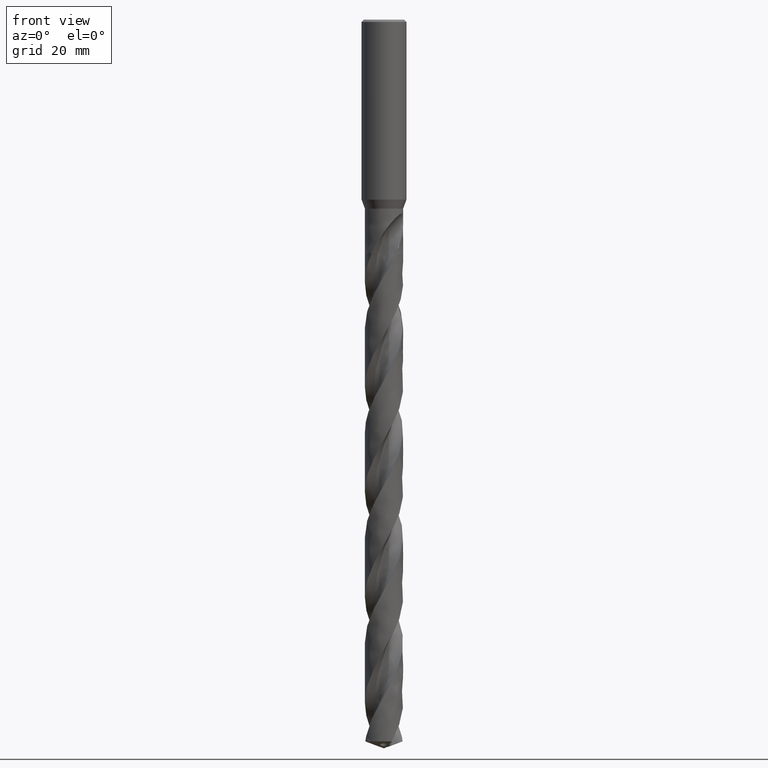
[diagram: clean part render]
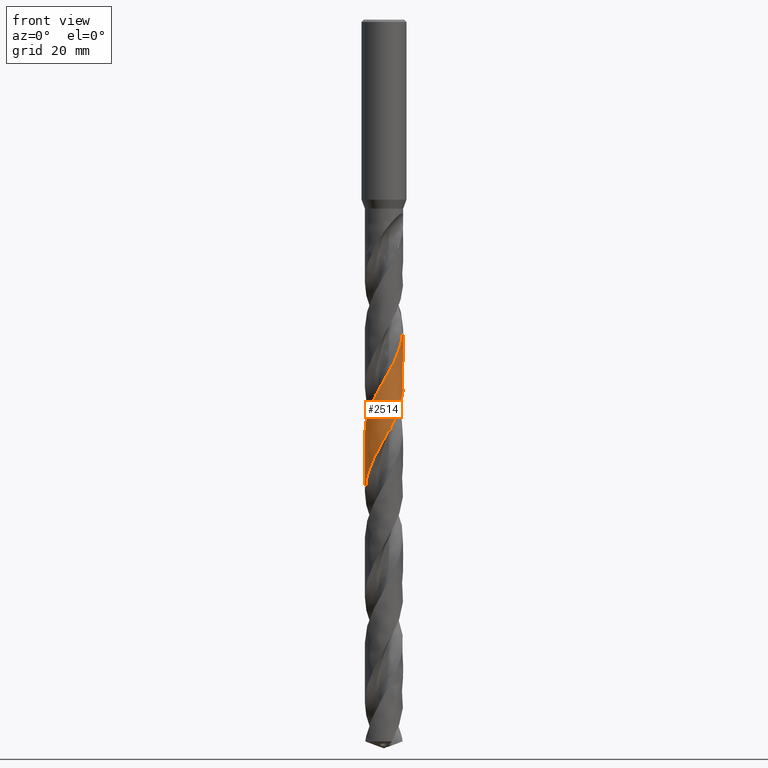
[diagram: same view with one face highlighted and labeled with its STEP entity id]
A machine part, front view. The second image highlights one B-rep face of the part: STEP entity #2514.
In plain terms, the highlighted face is a freeform B-spline surface patch.
Its self-contained STEP definition (entity closure, byte-faithful):
#1326 = VERTEX_POINT('', #1327);
#1327 = CARTESIAN_POINT('', (-4.25, 3.44431912260193E-15, -52.));
#1369 = VERTEX_POINT('', #1370);
#1370 = CARTESIAN_POINT('', (-2.63323054375684, 3.33595517107561, -52.));
#1377 = EDGE_CURVE('', #1326, #1369, #1378, .T.);
#1378 = CIRCLE('', #1379, 4.25);
#1379 = AXIS2_PLACEMENT_3D('', #1380, #1381, #1382);
#1380 = CARTESIAN_POINT('', (1.94968771746041E-31, 3.18408167778312E-15, -52.));
#1381 = DIRECTION('', (3.74939945665464E-33, 6.12323399573677E-17, -1.));
#1382 = DIRECTION('', (-1., 6.12323399573677E-17, 0.));
#1394 = VERTEX_POINT('', #1395);
#1395 = CARTESIAN_POINT('', (-4.25, 3.8383726451933E-15, -58.4353823954094));
#1441 = EDGE_CURVE('', #1442, #1394, #1444, .T.);
#1442 = VERTEX_POINT('', #1443);
#1443 = CARTESIAN_POINT('', (-4.25, 6.69082328236614E-15, -105.019436494254));
#1444 = B_SPLINE_CURVE_WITH_KNOTS('', 3, (#1445, #1446, #1447, #1448, #1449, #1450, #1451, #1452, #1453, #1454, #1455, #1456, #1457, #1458, #1459, #1460, #1461, #1462, #1463, #1464, #1465, #1466, #1467, #1468, #1469, #1470, #1471, #1472, #1473, #1474, #1475, #1476, #1477, #1478, #1479, #1480, #1481, #1482, #1483, #1484, #1485, #1486, #1487, #1488, #1489, #1490, #1491, #1492, #1493, #1494, #1495, #1496, #1497, #1498, #1499, #1500, #1501, #1502, #1503, #1504, #1505, #1506, #1507, #1508, #1509, #1510, #1511, #1512, #1513, #1514, #1515, #1516, #1517, #1518, #1519, #1520, #1521, #1522, #1523, #1524, #1525, #1526, #1527, #1528, #1529, #1530, #1531, #1532, #1533, #1534, #1535, #1536, #1537, #1538, #1539, #1540, #1541, #1542, #1543, #1544, #1545, #1546, #1547, #1548, #1549, #1550, #1551, #1552, #1553, #1554, #1555, #1556, #1557, #1558, #1559, #1560, #1561, #1562, #1563, #1564, #1565, #1566, #1567, #1568, #1569, #1570, #1571, #1572, #1573, #1574, #1575, #1576, #1577, #1578, #1579, #1580, #1581, #1582, #1583, #1584, #1585, #1586, #1587, #1588, #1589, #1590, #1591, #1592, #1593, #1594, #1595, #1596, #1597, #1598, #1599, #1600, #1601, #1602, #1603, #1604, #1605, #1606, #1607, #1608, #1609, #1610, #1611, #1612, #1613, #1614, #1615, #1616, #1617, #1618, #1619, #1620, #1621, #1622, #1623, #1624, #1625, #1626, #1627, #1628, #1629, #1630, #1631, #1632, #1633, #1634, #1635, #1636, #1637, #1638, #1639, #1640, #1641, #1642, #1643, #1644, #1645, #1646, #1647, #1648, #1649, #1650, #1651, #1652, #1653, #1654, #1655, #1656, #1657, #1658, #1659, #1660, #1661, #1662, #1663, #1664, #1665, #1666, #1667, #1668, #1669, #1670, #1671, #1672, #1673, #1674, #1675, #1676, #1677, #1678, #1679, #1680, #1681, #1682, #1683, #1684, #1685, #1686, #1687, #1688, #1689, #1690, #1691, #1692, #1693, #1694, #1695, #1696, #1697, #1698, #1699, #1700, #1701, #1702, #1703), .UNSPECIFIED., .F., .U., (4, 3, 3, 3, 3, 3, 3, 3, 3, 3, 3, 3, 3, 3, 3, 3, 3, 3, 3, 3, 3, 3, 3, 3, 3, 3, 3, 3, 3, 3, 3, 3, 3, 3, 3, 3, 3, 3, 3, 3, 3, 3, 3, 3, 3, 3, 3, 3, 3, 3, 3, 3, 3, 3, 3, 3, 3, 3, 3, 3, 3, 3, 3, 3, 3, 3, 3, 3, 3, 3, 3, 3, 3, 3, 3, 3, 3, 3, 3, 3, 3, 3, 3, 3, 3, 3, 4), (0., 0.666304491028576, 1.33246240148879, 1.99847849619734, 2.66435668678045, 3.3301002631643, 3.99571228662782, 4.66119529243989, 5.32655112415791, 5.99178125542375, 6.65688699846991, 7.32186919384392, 7.98672805856555, 8.65146358611535, 9.31607557646386, 9.98056333105113, 10.6449255420383, 11.3091607279052, 11.9732671055576, 12.637242289506, 13.3010832469642, 13.4324005637441, 13.4907907702682, 14.1570876197, 14.8232377225678, 15.4892457949626, 16.1551157243895, 16.8208508190842, 17.4864540855045, 18.1519280168268, 18.8172744449863, 19.4824948455404, 20.1475904765345, 20.8125621377894, 21.4774100404, 22.1421341569244, 22.8067342309544, 23.4712095191623, 24.1355587041229, 24.7997802583566, 25.4638723331044, 26.1278324860824, 26.7916576598123, 26.8500333887484, 26.9084176340999, 27.5747204866165, 28.2408760077099, 28.9068888944162, 29.5727630233258, 30.2385018110885, 30.9041082879825, 31.5695849056042, 32.2349334925863, 32.9001556136643, 33.5652525313614, 34.2302249864798, 34.8950732027507, 35.5597972229139, 36.2243967765796, 36.8888710468504, 37.5532187497619, 38.2174384061863, 38.8815281332647, 39.5454854055645, 40.2093072157146, 40.2676829178055, 40.3260675694711, 40.9923737241341, 41.6585320470696, 42.3245471960679, 42.9904230567046, 43.6561631281355, 44.3217704477034, 44.9872474064203, 45.6525958566295, 46.3178174295946, 46.982913373765, 47.6478843540446, 48.3127306368292, 48.9774523131552, 49.6420490765599, 50.3065200264248, 50.9708639344862, 51.6350793556228, 52.2991643347296, 52.9631162555951, 53.6916887740772), .UNSPECIFIED.);
#1445 = CARTESIAN_POINT('', (-4.25, 6.51003257010419E-15, -105.019436494254));
#1446 = CARTESIAN_POINT('', (-4.25, -0.110252977886411, -104.826632563171));
#1447 = CARTESIAN_POINT('', (-4.24570653638468, -0.220528515285121, -104.633793840374));
#1448 = CARTESIAN_POINT('', (-4.23713358548407, -0.33045268763185, -104.440992762004));
#1449 = CARTESIAN_POINT('', (-4.22856252055005, -0.440352677719753, -104.248234098014));
#1450 = CARTESIAN_POINT('', (-4.21571067899772, -0.549941821973465, -104.055440883584));
#1451 = CARTESIAN_POINT('', (-4.19862117108974, -0.658847677143295, -103.86268498368));
#1452 = CARTESIAN_POINT('', (-4.18153530130024, -0.767730347771637, -103.669970118825));
#1453 = CARTESIAN_POINT('', (-4.16020711503406, -0.875971022055226, -103.477221000141));
#1454 = CARTESIAN_POINT('', (-4.1347086366927, -0.983201144048756, -103.28450901145));
#1455 = CARTESIAN_POINT('', (-4.10921543802159, -1.09040906316114, -103.091836925366));
#1456 = CARTESIAN_POINT('', (-4.07954413480591, -1.19664708525192, -102.899130355044));
#1457 = CARTESIAN_POINT('', (-4.04579482025306, -1.30155455990655, -102.70646126208));
#1458 = CARTESIAN_POINT('', (-4.01205232847503, -1.40644082642447, -102.513831119175));
#1459 = CARTESIAN_POINT('', (-3.97422115603585, -1.51003542196457, -102.321166260733));
#1460 = CARTESIAN_POINT('', (-3.93242889748764, -1.61198727234556, -102.128538941954));
#1461 = CARTESIAN_POINT('', (-3.89064489721463, -1.71391897673623, -101.935949686908));
#1462 = CARTESIAN_POINT('', (-3.84488594953889, -1.81424614505944, -101.743326010206));
#1463 = CARTESIAN_POINT('', (-3.79530692993172, -1.91262785392566, -101.550739519576));
#1464 = CARTESIAN_POINT('', (-3.74573752038032, -2.01099049315884, -101.358190358586));
#1465 = CARTESIAN_POINT('', (-3.69233082292671, -2.10744550423176, -101.165606987168));
#1466 = CARTESIAN_POINT('', (-3.63526782500448, -2.20166478840153, -100.973060745145));
#1467 = CARTESIAN_POINT('', (-3.57821573184616, -2.29586606722481, -100.780551298794));
#1468 = CARTESIAN_POINT('', (-3.51748750978861, -2.38786757981079, -100.588007336677));
#1469 = CARTESIAN_POINT('', (-3.45328833843464, -2.47735739279404, -100.395500845956));
#1470 = CARTESIAN_POINT('', (-3.38910129572596, -2.5668302991697, -100.203030723974));
#1471 = CARTESIAN_POINT('', (-3.32142120697065, -2.65382509237765, -100.010525972873));
#1472 = CARTESIAN_POINT('', (-3.25047667977701, -2.73804699635083, -99.8180586503603));
#1473 = CARTESIAN_POINT('', (-3.17954541816324, -2.82225315207058, -99.6256273163976));
#1474 = CARTESIAN_POINT('', (-3.10532466339966, -2.90371860246975, -99.4331616818471));
#1475 = CARTESIAN_POINT('', (-3.02806589465463, -2.98216648388876, -99.240733120093));
#1476 = CARTESIAN_POINT('', (-2.9508214772231, -3.06059979310893, -99.0483403031826));
#1477 = CARTESIAN_POINT('', (-2.87051104988434, -3.13604622627235, -98.8559132984193));
#1478 = CARTESIAN_POINT('', (-2.78740671081164, -3.2082493401421, -98.6635234359185));
#1479 = CARTESIAN_POINT('', (-2.70431778465138, -3.2804390628907, -98.4711692549253));
#1480 = CARTESIAN_POINT('', (-2.61840526556114, -3.34941339830625, -98.2787805407265));
#1481 = CARTESIAN_POINT('', (-2.52995929685476, -3.41493864604595, -98.0864292756025));
#1482 = CARTESIAN_POINT('', (-2.44152973565412, -3.4804517382754, -97.8941136933314));
#1483 = CARTESIAN_POINT('', (-2.35053541894528, -3.54254090532273, -97.7017635816158));
#1484 = CARTESIAN_POINT('', (-2.25728381096995, -3.6009956674138, -97.5094507787899));
#1485 = CARTESIAN_POINT('', (-2.16404953325935, -3.65943956602997, -97.3171737161711));
#1486 = CARTESIAN_POINT('', (-2.06852412966553, -3.71427211135344, -97.1248624645581));
#1487 = CARTESIAN_POINT('', (-1.97103131361402, -3.76530683487455, -96.9325881905419));
#1488 = CARTESIAN_POINT('', (-1.87355672187141, -3.81633201848693, -96.74034985831));
#1489 = CARTESIAN_POINT('', (-1.77407874677551, -3.86358002500488, -96.5480773458612));
#1490 = CARTESIAN_POINT('', (-1.67293412747043, -3.90689024738918, -96.3558419890716));
#1491 = CARTESIAN_POINT('', (-1.57180861771184, -3.95019228704746, -96.1636429518659));
#1492 = CARTESIAN_POINT('', (-1.46897990951029, -3.9895739831773, -95.9714093910276));
#1493 = CARTESIAN_POINT('', (-1.36479503947842, -4.02490180007104, -95.7792132321813));
#1494 = CARTESIAN_POINT('', (-1.26063008944715, -4.06022286233588, -95.5870538209703));
#1495 = CARTESIAN_POINT('', (-1.15507146221144, -4.09150447806495, -95.3948599945392));
#1496 = CARTESIAN_POINT('', (-1.04847586602799, -4.11864035312103, -95.2027033482041));
#1497 = CARTESIAN_POINT('', (-0.941900940818795, -4.14577096599935, -95.010583964807));
#1498 = CARTESIAN_POINT('', (-0.834249666009806, -4.16876754703576, -94.8184304906907));
#1499 = CARTESIAN_POINT('', (-0.725886731461562, -4.1875516060209, -94.6263139222758));
#1500 = CARTESIAN_POINT('', (-0.617545203927661, -4.20633195422963, -94.4342353063411));
#1501 = CARTESIAN_POINT('', (-0.508451617154883, -4.22090851421937, -94.2421225041756));
#1502 = CARTESIAN_POINT('', (-0.398974813323592, -4.23123139267208, -94.0500468670689));
#1503 = CARTESIAN_POINT('', (-0.289520140872357, -4.24155218429417, -93.8580100591825));
#1504 = CARTESIAN_POINT('', (-0.179642337307445, -4.24762481474231, -93.6659387678775));
#1505 = CARTESIAN_POINT('', (-0.0697119780862336, -4.24942822508063, -93.4739048034937));
#1506 = CARTESIAN_POINT('', (-0.0479661673714889, -4.24978496565836, -93.4359177153965));
#1507 = CARTESIAN_POINT('', (-0.0262173553680987, -4.24997478423664, -93.3979304109763));
#1508 = CARTESIAN_POINT('', (-0.00446842787899927, -4.24999765095844, -93.359943439002));
#1509 = CARTESIAN_POINT('', (0.00520222637214364, -4.2500078186396, -93.3430525430167));
#1510 = CARTESIAN_POINT('', (0.0148729485907497, -4.24998497853721, -93.3261616338243));
#1511 = CARTESIAN_POINT('', (0.0245434849165587, -4.24992913086184, -93.3092707595893));
#1512 = CARTESIAN_POINT('', (0.134895002230393, -4.2492918471055, -93.116527199378));
#1513 = CARTESIAN_POINT('', (0.245244393134342, -4.24435320696931, -92.923748762756));
#1514 = CARTESIAN_POINT('', (0.355216569591355, -4.23512941817459, -92.7310080414941));
#1515 = CARTESIAN_POINT('', (0.465164525554072, -4.22590766084575, -92.538309769838));
#1516 = CARTESIAN_POINT('', (0.574776150451676, -4.21239920261417, -92.3455768832866));
#1517 = CARTESIAN_POINT('', (0.683678001718287, -4.19464949548428, -92.152881391862));
#1518 = CARTESIAN_POINT('', (0.792556633921543, -4.17690357278569, -91.9602269852195));
#1519 = CARTESIAN_POINT('', (0.900766950186433, -4.15491149118255, -91.7675381677755));
#1520 = CARTESIAN_POINT('', (1.00793994559538, -4.12874763894249, -91.5748866777405));
#1521 = CARTESIAN_POINT('', (1.11509071125025, -4.1025892135919, -91.3822751473542));
#1522 = CARTESIAN_POINT('', (1.22124469602076, -4.07225098453995, -91.1896289414114));
#1523 = CARTESIAN_POINT('', (1.32604098077639, -4.03783547427351, -90.9970203673823));
#1524 = CARTESIAN_POINT('', (1.43081604490263, -4.00342693294485, -90.8044507954531));
#1525 = CARTESIAN_POINT('', (1.53427242055619, -3.96493013633548, -90.6118464354971));
#1526 = CARTESIAN_POINT('', (1.63605861944288, -3.92247526362457, -90.4192796800295));
#1527 = CARTESIAN_POINT('', (1.73782466271652, -3.88002879778998, -90.2267510564604));
#1528 = CARTESIAN_POINT('', (1.83795899453496, -3.83361002673158, -90.0341879383679));
#1529 = CARTESIAN_POINT('', (1.93612053991084, -3.78337643579585, -89.8416621004397));
#1530 = CARTESIAN_POINT('', (2.03426301126211, -3.73315260587954, -89.6491736727068));
#1531 = CARTESIAN_POINT('', (2.1304705633924, -3.67909645037926, -89.4566508691901));
#1532 = CARTESIAN_POINT('', (2.22441545711597, -3.62139142791048, -89.2641653894503));
#1533 = CARTESIAN_POINT('', (2.31834235122976, -3.56369746158159, -89.0717167894534));
#1534 = CARTESIAN_POINT('', (2.41004240656648, -3.50233458975464, -88.8792335087352));
#1535 = CARTESIAN_POINT('', (2.49920416581811, -3.43751051453772, -88.6867878312342));
#1536 = CARTESIAN_POINT('', (2.58834903635954, -3.37269871807157, -88.4943786061238));
#1537 = CARTESIAN_POINT('', (2.67498927033019, -3.30440325280626, -88.3019346879971));
#1538 = CARTESIAN_POINT('', (2.75883054038898, -3.23285540187263, -88.1095282606764));
#1539 = CARTESIAN_POINT('', (2.84265608507558, -3.1613209705423, -87.9171579213429));
#1540 = CARTESIAN_POINT('', (2.92371496053241, -3.08650867537206, -87.724753196474));
#1541 = CARTESIAN_POINT('', (3.00173106889714, -3.00867256277874, -87.5323856558778));
#1542 = CARTESIAN_POINT('', (3.07973263553862, -2.93085095835858, -87.3400539714093));
#1543 = CARTESIAN_POINT('', (3.15472203611583, -2.84997727413553, -87.1476879288957));
#1544 = CARTESIAN_POINT('', (3.22644399903215, -2.76632592459916, -86.9553592125797));
#1545 = CARTESIAN_POINT('', (3.29815261369108, -2.68269014351211, -86.7630662907834));
#1546 = CARTESIAN_POINT('', (3.36662156101663, -2.59624679984387, -86.5707387008396));
#1547 = CARTESIAN_POINT('', (3.43161838955423, -2.50728842147712, -86.3784486692059));
#1548 = CARTESIAN_POINT('', (3.49660311652245, -2.41834660601062, -86.1861944394906));
#1549 = CARTESIAN_POINT('', (3.55814086495418, -2.32685803536867, -85.9939056212249));
#1550 = CARTESIAN_POINT('', (3.6160224848721, -2.23313264023867, -85.8016541751851));
#1551 = CARTESIAN_POINT('', (3.67389330364661, -2.13942473496879, -85.6094386047037));
#1552 = CARTESIAN_POINT('', (3.72813099667462, -2.04344575636237, -85.4171887440614));
#1553 = CARTESIAN_POINT('', (3.77855073398847, -1.94552161403444, -85.2249759943549));
#1554 = CARTESIAN_POINT('', (3.82896100445359, -1.84761585801894, -85.0327993346624));
#1555 = CARTESIAN_POINT('', (3.87557376204051, -1.74772878058541, -84.8405883190799));
#1556 = CARTESIAN_POINT('', (3.91823031639561, -1.64619901217269, -84.6484146334294));
#1557 = CARTESIAN_POINT('', (3.96087877544586, -1.54468851194606, -84.4562774182485));
#1558 = CARTESIAN_POINT('', (3.99958826585228, -1.44149855195005, -84.2641055695981));
#1559 = CARTESIAN_POINT('', (4.03422723836602, -1.33697815585211, -84.0719712141178));
#1560 = CARTESIAN_POINT('', (4.06885955625093, -1.23247783957732, -83.879873770322));
#1561 = CARTESIAN_POINT('', (4.09943564380718, -1.12660915226758, -83.6877418530223));
#1562 = CARTESIAN_POINT('', (4.12585132822038, -1.01973075731892, -83.4956471842606));
#1563 = CARTESIAN_POINT('', (4.15226186331372, -0.912873196622833, -83.3035899613161));
#1564 = CARTESIAN_POINT('', (4.17452351143613, -0.804966212394103, -83.1114985254704));
#1565 = CARTESIAN_POINT('', (4.1925601302769, -0.696376014817245, -82.9194441558299));
#1566 = CARTESIAN_POINT('', (4.21059316614661, -0.587807388663378, -82.727427937755));
#1567 = CARTESIAN_POINT('', (4.22440963711361, -0.478515091052319, -82.5353773514303));
#1568 = CARTESIAN_POINT('', (4.23396215402292, -0.368869188604845, -82.3433640954593));
#1569 = CARTESIAN_POINT('', (4.24351272896094, -0.259245576533376, -82.1513898746696));
#1570 = CARTESIAN_POINT('', (4.24880460425638, -0.149228254120635, -81.9593810809503));
#1571 = CARTESIAN_POINT('', (4.24981931516589, -0.0391891368071635, -81.7674096917391));
#1572 = CARTESIAN_POINT('', (4.2499085472278, -0.0295124720182032, -81.7505280333995));
#1573 = CARTESIAN_POINT('', (4.24996472936158, -0.0198354677677881, -81.733646362593));
#1574 = CARTESIAN_POINT('', (4.24998785967136, -0.0101583781214259, -81.7167647278068));
#1575 = CARTESIAN_POINT('', (4.25001099335561, -0.000479876687722607, -81.6998806301646));
#1576 = CARTESIAN_POINT('', (4.25000106563766, 0.00919873809383668, -81.6829965198283));
#1577 = CARTESIAN_POINT('', (4.24995807636617, 0.0188772119220686, -81.6661124452418));
#1578 = CARTESIAN_POINT('', (4.24946746671549, 0.129331576467437, -81.4734250688557));
#1579 = CARTESIAN_POINT('', (4.24466751966969, 0.239789777083936, -81.2807027914694));
#1580 = CARTESIAN_POINT('', (4.23557402855559, 0.349875190068609, -81.0880182237664));
#1581 = CARTESIAN_POINT('', (4.22648254817427, 0.459936261208574, -80.8953762620518));
#1582 = CARTESIAN_POINT('', (4.2130959822755, 0.569666067076453, -80.7026996916483));
#1583 = CARTESIAN_POINT('', (4.19545949574507, 0.678689634194145, -80.5100605576047));
#1584 = CARTESIAN_POINT('', (4.17782678546414, 0.787689857649291, -80.3174626706333));
#1585 = CARTESIAN_POINT('', (4.15593929879212, 0.896025476366526, -80.1248301570734));
#1586 = CARTESIAN_POINT('', (4.12987111997345, 1.00332673262965, -79.9322352513557));
#1587 = CARTESIAN_POINT('', (4.10380837222545, 1.11060563364081, -79.739680471055));
#1588 = CARTESIAN_POINT('', (4.073557014763, 1.21689045908929, -79.5470907873203));
#1589 = CARTESIAN_POINT('', (4.0392194301527, 1.32181935039434, -79.3545388958945));
#1590 = CARTESIAN_POINT('', (4.00488882477148, 1.4267269145508, -79.1620261412856));
#1591 = CARTESIAN_POINT('', (3.9664609464054, 1.5303178838108, -78.9694785983776));
#1592 = CARTESIAN_POINT('', (3.92406616975923, 1.6322391661001, -78.7769686420122));
#1593 = CARTESIAN_POINT('', (3.88167981877464, 1.73414019225645, -78.584496945637));
#1594 = CARTESIAN_POINT('', (3.83531215997244, 1.83441057419523, -78.3919907308297));
#1595 = CARTESIAN_POINT('', (3.78512091014125, 1.93270786608104, -78.1995218849473));
#1596 = CARTESIAN_POINT('', (3.73493945258134, 2.0309859802466, -78.0070905895772));
#1597 = CARTESIAN_POINT('', (3.68091694079143, 2.12732893264925, -77.814624676658));
#1598 = CARTESIAN_POINT('', (3.62323685718102, 2.22140826431455, -77.622196359738));
#1599 = CARTESIAN_POINT('', (3.56556787060664, 2.31546949611476, -77.4298050639842));
#1600 = CARTESIAN_POINT('', (3.50422138704395, 2.40730280600894, -77.2373789159292));
#1601 = CARTESIAN_POINT('', (3.43940544885052, 2.49659571385064, -77.0449904838773));
#1602 = CARTESIAN_POINT('', (3.37460183052426, 2.58587164937357, -76.8526386199905));
#1603 = CARTESIAN_POINT('', (3.30630605135207, 2.67264121625526, -76.660252079596));
#1604 = CARTESIAN_POINT('', (3.23475017219209, 2.75660866346735, -76.4679030085852));
#1605 = CARTESIAN_POINT('', (3.16320776077126, 2.84056030692315, -76.2755901401498));
#1606 = CARTESIAN_POINT('', (3.08837946474061, 2.92174255980404, -76.0832428181171));
#1607 = CARTESIAN_POINT('', (3.01051991523131, 2.99987830419763, -75.8909328328461));
#1608 = CARTESIAN_POINT('', (2.93267493592983, 3.07799942669783, -75.6986588354078));
#1609 = CARTESIAN_POINT('', (2.85177056693053, 3.15310458480258, -75.5063502086402));
#1610 = CARTESIAN_POINT('', (2.76808151303398, 3.22493794315481, -75.3140791719245));
#1611 = CARTESIAN_POINT('', (2.68440809502058, 3.29675788065992, -75.1218440577974));
#1612 = CARTESIAN_POINT('', (2.59792015065396, 3.36533376164785, -74.9295741550358));
#1613 = CARTESIAN_POINT('', (2.50891103254894, 3.43043225129928, -74.7373418816059));
#1614 = CARTESIAN_POINT('', (2.41991854167663, 3.49551858031189, -74.5451455178763));
#1615 = CARTESIAN_POINT('', (2.32837274029238, 3.5571529837431, -74.35291458973));
#1616 = CARTESIAN_POINT('', (2.23458478878314, 3.61512528437661, -74.1607210196038));
#1617 = CARTESIAN_POINT('', (2.14081439863393, 3.67308672996502, -73.9685634368345));
#1618 = CARTESIAN_POINT('', (2.04476727149472, 3.72740933391408, -73.7763714433842));
#1619 = CARTESIAN_POINT('', (1.9467700514826, 3.7779076704772, -73.5842167798097));
#1620 = CARTESIAN_POINT('', (1.84879130488706, 3.82839648761918, -73.3920983392337));
#1621 = CARTESIAN_POINT('', (1.74882656949451, 3.87508138133196, -73.1999452536304));
#1622 = CARTESIAN_POINT('', (1.64721496562403, 3.91780332036006, -73.0078297453164));
#1623 = CARTESIAN_POINT('', (1.54562271647193, 3.96051712182249, -72.815750830673));
#1624 = CARTESIAN_POINT('', (1.44234678770605, 3.99928522131406, -72.6236372072589));
#1625 = CARTESIAN_POINT('', (1.33773742026131, 4.03397553220551, -72.4315611131014));
#1626 = CARTESIAN_POINT('', (1.23314821524351, 4.06865915688064, -72.2395220397223));
#1627 = CARTESIAN_POINT('', (1.12718708846486, 4.09927947318677, -72.0474485134621));
#1628 = CARTESIAN_POINT('', (1.02021417098641, 4.12573181936474, -71.8554122417867));
#1629 = CARTESIAN_POINT('', (0.913262178695988, 4.15217899114594, -71.6634135347134));
#1630 = CARTESIAN_POINT('', (0.805258389878104, 4.1744698152148, -71.4713804488324));
#1631 = CARTESIAN_POINT('', (0.696569767642298, 4.19252794371212, -71.2793846872658));
#1632 = CARTESIAN_POINT('', (0.587902823693038, 4.21058247045908, -71.0874272198559));
#1633 = CARTESIAN_POINT('', (0.478510900216153, 4.22441272885541, -70.8954351145133));
#1634 = CARTESIAN_POINT('', (0.368764738709297, 4.23397125255771, -70.7034805506267));
#1635 = CARTESIAN_POINT('', (0.259040967876644, 4.24352782610715, -70.5115651497691));
#1636 = CARTESIAN_POINT('', (0.148922678812291, 4.24881792336783, -70.3196151390195));
#1637 = CARTESIAN_POINT('', (0.0387832220384509, 4.24982303886751, -70.1277025420529));
#1638 = CARTESIAN_POINT('', (0.0290976889348749, 4.24991142753157, -70.1108259760577));
#1639 = CARTESIAN_POINT('', (0.0194118187405882, 4.2499667056891, -70.0939493976253));
#1640 = CARTESIAN_POINT('', (0.00972586595517169, 4.24998887145972, -70.0770728555872));
#1641 = CARTESIAN_POINT('', (3.84282170298178E-5, 4.25001104062857, -70.0601937262077));
#1642 = CARTESIAN_POINT('', (-0.00964912019323382, 4.25000008732049, -70.043314584344));
#1643 = CARTESIAN_POINT('', (-0.0193365244888529, 4.24995601139832, -70.0264354787594));
#1644 = CARTESIAN_POINT('', (-0.12989258538394, 4.24945300149112, -69.8338051963917));
#1645 = CARTESIAN_POINT('', (-0.240452314308197, 4.24463268893771, -69.641140029138));
#1646 = CARTESIAN_POINT('', (-0.350637495092077, 4.23551099007378, -69.4485125600425));
#1647 = CARTESIAN_POINT('', (-0.460798229357622, 4.22639131501901, -69.2559278287356));
#1648 = CARTESIAN_POINT('', (-0.570626403721899, 4.21296869064996, -69.0633083902977));
#1649 = CARTESIAN_POINT('', (-0.679746020758714, 4.19528847008913, -68.8707265802578));
#1650 = CARTESIAN_POINT('', (-0.788842185284826, 4.17761204944598, -68.6781861608228));
#1651 = CARTESIAN_POINT('', (-0.897271224090924, 4.15567322078513, -68.4856108343728));
#1652 = CARTESIAN_POINT('', (-1.00466280464936, 4.12954630061877, -68.2930733716674));
#1653 = CARTESIAN_POINT('', (-1.11203192566266, 4.1034248445562, -68.1005761756553));
#1654 = CARTESIAN_POINT('', (-1.21840386842205, 4.07310736031467, -67.9080439767275));
#1655 = CARTESIAN_POINT('', (-1.32341559528586, 4.03869671579263, -67.715549629145));
#1656 = CARTESIAN_POINT('', (-1.42840590755899, 4.00429308848562, -67.5230945361086));
#1657 = CARTESIAN_POINT('', (-1.5320758573156, 3.96578507068191, -67.3306046733467));
#1658 = CARTESIAN_POINT('', (-1.63407093277872, 3.92330373367239, -67.1381523970133));
#1659 = CARTESIAN_POINT('', (-1.73604566991932, 3.88083086765158, -66.9457384966157));
#1660 = CARTESIAN_POINT('', (-1.83638492047192, 3.83437013724263, -66.7532899372057));
#1661 = CARTESIAN_POINT('', (-1.93474551125419, 3.78407978333991, -66.5608789839976));
#1662 = CARTESIAN_POINT('', (-2.03308683786983, 3.73379927892822, -66.3685057149538));
#1663 = CARTESIAN_POINT('', (-2.12948717672803, 3.67967181119114, -66.1760975496636));
#1664 = CARTESIAN_POINT('', (-2.22361761547094, 3.62188137577245, -65.9837272131686));
#1665 = CARTESIAN_POINT('', (-2.31772987693204, 3.56410210011297, -65.791394024804));
#1666 = CARTESIAN_POINT('', (-2.40960800436062, 3.50263984977205, -65.59902592124));
#1667 = CARTESIAN_POINT('', (-2.49893851527508, 3.43770363715007, -65.4066955650567));
#1668 = CARTESIAN_POINT('', (-2.58825199149287, 3.37277980740459, -65.2144018849121));
#1669 = CARTESIAN_POINT('', (-2.67505233969469, 3.30435894961924, -65.0220735395917));
#1670 = CARTESIAN_POINT('', (-2.7590427825107, 3.23267426819895, -64.8297826867366));
#1671 = CARTESIAN_POINT('', (-2.84301736351685, 3.16100312461403, -64.6375281485008));
#1672 = CARTESIAN_POINT('', (-2.92421496940244, 3.08604219606713, -64.4452389813455));
#1673 = CARTESIAN_POINT('', (-3.0023580999811, 3.00804684795266, -64.2529874082282));
#1674 = CARTESIAN_POINT('', (-3.08048654836282, 2.93006615426849, -64.0607719569739));
#1675 = CARTESIAN_POINT('', (-3.15559086147645, 2.84902307398049, -63.8685216302048));
#1676 = CARTESIAN_POINT('', (-3.22741492830987, 2.76519310004249, -63.6763090873572));
#1677 = CARTESIAN_POINT('', (-3.29922552646348, 2.68137884617058, -63.4841325888232));
#1678 = CARTESIAN_POINT('', (-3.36778373093321, 2.59474765950337, -63.2919212703199));
#1679 = CARTESIAN_POINT('', (-3.43285557899831, 2.50559425560887, -63.0997475912911));
#1680 = CARTESIAN_POINT('', (-3.49791523120289, 2.41645756097517, -62.9076099297331));
#1681 = CARTESIAN_POINT('', (-3.55951431071571, 2.3247660256997, -62.7154376955249));
#1682 = CARTESIAN_POINT('', (-3.61744215882041, 2.23083218274902, -62.5233028802866));
#1683 = CARTESIAN_POINT('', (-3.67535912126123, 2.1369159916234, -62.3312041705672));
#1684 = CARTESIAN_POINT('', (-3.72962817745041, 2.04072277031507, -62.139070845579));
#1685 = CARTESIAN_POINT('', (-3.78006388869294, 1.94257998481392, -61.9469751078457));
#1686 = CARTESIAN_POINT('', (-3.83049005204762, 1.84445577853541, -61.7549157353884));
#1687 = CARTESIAN_POINT('', (-3.87710309813583, 1.74434624781466, -61.5628215242812));
#1688 = CARTESIAN_POINT('', (-3.91974399861684, 1.64259154548759, -61.370765036451));
#1689 = CARTESIAN_POINT('', (-3.96237674648123, 1.54085629788749, -61.178745268364));
#1690 = CARTESIAN_POINT('', (-4.00105468489086, 1.43743872891816, -60.9866907840544));
#1691 = CARTESIAN_POINT('', (-4.0356456240658, 1.33269066064057, -60.7946738258189));
#1692 = CARTESIAN_POINT('', (-4.07022987320665, 1.22796285108289, -60.6026940044761));
#1693 = CARTESIAN_POINT('', (-4.10074173962898, 1.12186553362223, -60.4106796874527));
#1694 = CARTESIAN_POINT('', (-4.12707666857777, 1.01476015475635, -60.2187027473754));
#1695 = CARTESIAN_POINT('', (-4.15340642573818, 0.907675809793908, -60.0267635087139));
#1696 = CARTESIAN_POINT('', (-4.17557083495355, 0.799543400843375, -59.8347896571028));
#1697 = CARTESIAN_POINT('', (-4.1934939067153, 0.690730667005496, -59.6428533738225));
#1698 = CARTESIAN_POINT('', (-4.2114133873517, 0.581939735243312, -59.4509555475244));
#1699 = CARTESIAN_POINT('', (-4.22509988660753, 0.472428427392967, -59.2590229164553));
#1700 = CARTESIAN_POINT('', (-4.23450635083896, 0.362568565522377, -59.0671279463848));
#1701 = CARTESIAN_POINT('', (-4.24482832012578, 0.24201634821904, -58.8565563714943));
#1702 = CARTESIAN_POINT('', (-4.25, 0.120999373034958, -58.6459504842162));
#1703 = CARTESIAN_POINT('', (-4.25, 4.96775894321714E-15, -58.4353823954094));
#2493 = EDGE_CURVE('', #1326, #1394, #2494, .T.);
#2494 = LINE('', #2495, #2496);
#2495 = CARTESIAN_POINT('', (-4.25, 3.44431912260193E-15, -52.));
#2496 = VECTOR('', #2497, 6.43538239540942);
#2497 = DIRECTION('', (0., 3.94053522591368E-16, -6.43538239540942));
#2514 = ADVANCED_FACE('', (#2515), #2772, .T.);
#2515 = FACE_OUTER_BOUND('', #2516, .T.);
#2516 = EDGE_LOOP('', (#2517, #2518, #2569, #2764, #2770, #2771));
#2517 = ORIENTED_EDGE('', *, *, #1377, .T.);
#2518 = ORIENTED_EDGE('', *, *, #2519, .T.);
#2519 = EDGE_CURVE('', #1369, #2520, #2522, .T.);
#2520 = VERTEX_POINT('', #2521);
#2521 = CARTESIAN_POINT('', (0.390816398711003, 4.23199273894682, -57.6272435783139));
#2522 = B_SPLINE_CURVE_WITH_KNOTS('', 3, (#2523, #2524, #2525, #2526, #2527, #2528, #2529, #2530, #2531, #2532, #2533, #2534, #2535, #2536, #2537, #2538, #2539, #2540, #2541, #2542, #2543, #2544, #2545, #2546, #2547, #2548, #2549, #2550, #2551, #2552, #2553, #2554, #2555, #2556, #2557, #2558, #2559, #2560, #2561, #2562, #2563, #2564, #2565, #2566, #2567, #2568), .UNSPECIFIED., .F., .U., (4, 3, 3, 3, 3, 3, 3, 3, 3, 3, 3, 3, 3, 3, 3, 4), (0.712586398372292, 0.738811763176486, 1.18205016972165, 1.62524417102294, 2.06838113469871, 2.51150068181104, 2.95462314051418, 3.3976799606772, 3.84070294652841, 4.2837010379515, 4.94779826447359, 5.61175338940864, 6.27557681587229, 6.40689333587245, 6.46528216923032, 7.20135493770089), .UNSPECIFIED.);
#2523 = CARTESIAN_POINT('', (-2.63323054375684, 3.33595517107561, -52.));
#2524 = CARTESIAN_POINT('', (-2.62990285633421, 3.33858187548618, -52.0076449841387));
#2525 = CARTESIAN_POINT('', (-2.62657022911817, 3.34120439742363, -52.0152893865622));
#2526 = CARTESIAN_POINT('', (-2.6232327668604, 3.34382264046285, -52.0229330120887));
#2527 = CARTESIAN_POINT('', (-2.56682586979386, 3.38807391709198, -52.1521189518795));
#2528 = CARTESIAN_POINT('', (-2.50901943582711, 3.43111550461983, -52.281121792188));
#2529 = CARTESIAN_POINT('', (-2.44991339744671, 3.47281216667591, -52.4099503028524));
#2530 = CARTESIAN_POINT('', (-2.39081328052531, 3.51450465140796, -52.5387659070055));
#2531 = CARTESIAN_POINT('', (-2.33040532150487, 3.55485903170916, -52.667428559705));
#2532 = CARTESIAN_POINT('', (-2.26877740836304, 3.59376530553989, -52.7959308910263));
#2533 = CARTESIAN_POINT('', (-2.20715742653306, 3.63266657225981, -52.9244166845157));
#2534 = CARTESIAN_POINT('', (-2.14430792080971, 3.67012664208819, -53.052763549137));
#2535 = CARTESIAN_POINT('', (-2.08031136152806, 3.70604973510853, -53.1809544288037));
#2536 = CARTESIAN_POINT('', (-2.01631731749617, 3.74197141624749, -53.3091402701983));
#2537 = CARTESIAN_POINT('', (-1.95115645951202, 3.77636542288269, -53.4371862243364));
#2538 = CARTESIAN_POINT('', (-1.88500710162734, 3.80910071103599, -53.5651310489383));
#2539 = CARTESIAN_POINT('', (-1.81885730909728, 3.84183621428196, -53.693076714223));
#2540 = CARTESIAN_POINT('', (-1.75170719447016, 3.87291693784062, -53.8209430465329));
#2541 = CARTESIAN_POINT('', (-1.68383929465591, 3.90220261259878, -53.9488250191422));
#2542 = CARTESIAN_POINT('', (-1.61598144793145, 3.93148394934856, -54.0766880489382));
#2543 = CARTESIAN_POINT('', (-1.54741488644641, 3.95897135225314, -54.2046002301523));
#2544 = CARTESIAN_POINT('', (-1.47821920940411, 3.98464151071947, -54.332522236373));
#2545 = CARTESIAN_POINT('', (-1.40902881653307, 4.01030970886804, -54.4604344737495));
#2546 = CARTESIAN_POINT('', (-1.33919725346387, 4.0341658280709, -54.5883779363325));
#2547 = CARTESIAN_POINT('', (-1.26878355895195, 4.05619135156778, -54.7163017233011));
#2548 = CARTESIAN_POINT('', (-1.19837382113914, 4.07821563740244, -54.8442183219529));
#2549 = CARTESIAN_POINT('', (-1.12736323674677, 4.0984142988242, -54.9721329678388));
#2550 = CARTESIAN_POINT('', (-1.05586923887265, 4.11675116449883, -55.1000298957975));
#2551 = CARTESIAN_POINT('', (-0.948692782313532, 4.14423990965011, -55.2917598304913));
#2552 = CARTESIAN_POINT('', (-0.840399054841451, 4.16754993180954, -55.4835129674301));
#2553 = CARTESIAN_POINT('', (-0.731401760421918, 4.18659186748016, -55.6752413855204));
#2554 = CARTESIAN_POINT('', (-0.622427788925448, 4.20562972861294, -55.8669287781231));
#2555 = CARTESIAN_POINT('', (-0.512701913511691, 4.22041137351703, -56.0586600217501));
#2556 = CARTESIAN_POINT('', (-0.402585496566981, 4.23088937670944, -56.2503535513003));
#2557 = CARTESIAN_POINT('', (-0.292490921706538, 4.24136530154301, -56.4420090575807));
#2558 = CARTESIAN_POINT('', (-0.181960916231926, 4.24754307170845, -56.6336979452064));
#2559 = CARTESIAN_POINT('', (-0.0713784999178593, 4.24940055887269, -56.8253499017474));
#2560 = CARTESIAN_POINT('', (-0.0495032579413426, 4.24976800410079, -56.8632621943555));
#2561 = CARTESIAN_POINT('', (-0.0276249907049887, 4.24996653187446, -56.9011747549328));
#2562 = CARTESIAN_POINT('', (-0.00574666148961986, 4.24999611480784, -56.9390870351851));
#2563 = CARTESIAN_POINT('', (0.00398136144841614, 4.250009268621, -56.9559444253585));
#2564 = CARTESIAN_POINT('', (0.0137094432798798, 4.24998902183374, -56.9728018406971));
#2565 = CARTESIAN_POINT('', (0.02343732405497, 4.24993537501939, -56.9896592326784));
#2566 = CARTESIAN_POINT('', (0.146070843542955, 4.24925908202135, -57.2021701953279));
#2567 = CARTESIAN_POINT('', (0.268702792788377, 4.24326969584259, -57.4147313569897));
#2568 = CARTESIAN_POINT('', (0.390816398711045, 4.23199273894681, -57.627243578314));
#2569 = ORIENTED_EDGE('', *, *, #2570, .T.);
#2570 = EDGE_CURVE('', #2520, #2571, #2573, .T.);
#2571 = VERTEX_POINT('', #2572);
#2572 = CARTESIAN_POINT('', (-4.25, 5.87915965138244E-15, -91.7639634623752));
#2573 = B_SPLINE_CURVE_WITH_KNOTS('', 3, (#2574, #2575, #2576, #2577, #2578, #2579, #2580, #2581, #2582, #2583, #2584, #2585, #2586, #2587, #2588, #2589, #2590, #2591, #2592, #2593, #2594, #2595, #2596, #2597, #2598, #2599, #2600, #2601, #2602, #2603, #2604, #2605, #2606, #2607, #2608, #2609, #2610, #2611, #2612, #2613, #2614, #2615, #2616, #2617, #2618, #2619, #2620, #2621, #2622, #2623, #2624, #2625, #2626, #2627, #2628, #2629, #2630, #2631, #2632, #2633, #2634, #2635, #2636, #2637, #2638, #2639, #2640, #2641, #2642, #2643, #2644, #2645, #2646, #2647, #2648, #2649, #2650, #2651, #2652, #2653, #2654, #2655, #2656, #2657, #2658, #2659, #2660, #2661, #2662, #2663, #2664, #2665, #2666, #2667, #2668, #2669, #2670, #2671, #2672, #2673, #2674, #2675, #2676, #2677, #2678, #2679, #2680, #2681, #2682, #2683, #2684, #2685, #2686, #2687, #2688, #2689, #2690, #2691, #2692, #2693, #2694, #2695, #2696, #2697, #2698, #2699, #2700, #2701, #2702, #2703, #2704, #2705, #2706, #2707, #2708, #2709, #2710, #2711, #2712, #2713, #2714, #2715, #2716, #2717, #2718, #2719, #2720, #2721, #2722, #2723, #2724, #2725, #2726, #2727, #2728, #2729, #2730, #2731, #2732, #2733, #2734, #2735, #2736, #2737, #2738, #2739, #2740, #2741, #2742, #2743, #2744, #2745, #2746, #2747, #2748, #2749, #2750, #2751, #2752, #2753, #2754, #2755, #2756, #2757, #2758, #2759, #2760, #2761, #2762, #2763), .UNSPECIFIED., .F., .U., (4, 3, 3, 3, 3, 3, 3, 3, 3, 3, 3, 3, 3, 3, 3, 3, 3, 3, 3, 3, 3, 3, 3, 3, 3, 3, 3, 3, 3, 3, 3, 3, 3, 3, 3, 3, 3, 3, 3, 3, 3, 3, 3, 3, 3, 3, 3, 3, 3, 3, 3, 3, 3, 3, 3, 3, 3, 3, 3, 3, 3, 3, 3, 4), (0., 0.666151249076859, 1.33215735856593, 1.998022298534, 2.66374937532518, 3.3293418359485, 3.99480247696267, 4.66013317240493, 5.32533522171909, 5.99041020175989, 6.65535909395194, 7.32018203309401, 7.98487887468494, 8.64944964060476, 9.31389367254129, 9.97820946900162, 10.6423954911993, 11.3064500804777, 11.9703707797397, 12.4131834551386, 12.5445003113964, 12.6320706125836, 13.2983820999477, 13.9645440915061, 14.6305612985652, 15.2964375520291, 15.9621767436997, 16.6277821351651, 17.2932560803957, 17.9586004186313, 18.623817146321, 19.2889076461314, 19.9538724866228, 20.6187120130909, 21.2834266301556, 21.9480160932445, 22.6124793792755, 23.2768154539094, 23.9410231081405, 24.6051004037509, 25.2690446386495, 25.9328531332933, 25.9912314508779, 26.6575441082693, 27.3237079394881, 27.9897274230174, 28.655606901496, 29.3213502050942, 29.9869602979325, 30.6524394330597, 31.3177899478149, 31.9830136994876, 32.6481117876842, 33.313084844488, 33.97793361796, 34.6426583390041, 35.3072585063484, 35.9717333434269, 36.6360820680914, 37.3003032994118, 37.9643948958045, 38.6283545539081, 39.2921797174758, 39.3790257094067), .UNSPECIFIED.);
#2574 = CARTESIAN_POINT('', (0.390816398711003, 4.23199273894682, -57.6272435783139));
#2575 = CARTESIAN_POINT('', (0.501330106864732, 4.22178701032367, -57.8195686958065));
#2576 = CARTESIAN_POINT('', (0.611460413710921, 4.20724752380476, -58.0119332192673));
#2577 = CARTESIAN_POINT('', (0.720828094606488, 4.18842534349446, -58.2042632047326));
#2578 = CARTESIAN_POINT('', (0.830171946709203, 4.16960726411994, -58.3965512857582));
#2579 = CARTESIAN_POINT('', (0.938794287044077, 4.14650135398451, -58.5888790450746));
#2580 = CARTESIAN_POINT('', (1.04632185537548, 4.11918809657486, -58.7811723424798));
#2581 = CARTESIAN_POINT('', (1.15382663170078, 4.09188062860078, -58.9734248805701));
#2582 = CARTESIAN_POINT('', (1.26027745665461, 4.06035732362628, -59.1657169254861));
#2583 = CARTESIAN_POINT('', (1.36530794478892, 4.02472784370527, -59.3579749548761));
#2584 = CARTESIAN_POINT('', (1.47031668701667, 3.98910574064554, -59.5501931784419));
#2585 = CARTESIAN_POINT('', (1.57394656420333, 3.94936526619946, -59.7424503750891));
#2586 = CARTESIAN_POINT('', (1.67584012477029, 3.90564461724438, -59.9346737420645));
#2587 = CARTESIAN_POINT('', (1.77771308151756, 3.86193280900861, -60.1268582396985));
#2588 = CARTESIAN_POINT('', (1.87788963807917, 3.81422565812376, -60.319082108655));
#2589 = CARTESIAN_POINT('', (1.97602596704173, 3.76268805212136, -60.5112716992466));
#2590 = CARTESIAN_POINT('', (2.0741428602485, 3.71116065306612, -60.7034232269722));
#2591 = CARTESIAN_POINT('', (2.17025684758683, 3.65578516735929, -60.8956144076991));
#2592 = CARTESIAN_POINT('', (2.2640390295856, 3.5967523229315, -61.0877711999588));
#2593 = CARTESIAN_POINT('', (2.35780289858655, 3.53773100594237, -61.2798904694519));
#2594 = CARTESIAN_POINT('', (2.44927112956429, 3.4750315164631, -61.4720489292784));
#2595 = CARTESIAN_POINT('', (2.53812959851476, 3.40887050812191, -61.6641735923771));
#2596 = CARTESIAN_POINT('', (2.62697088608751, 3.34272229245302, -61.8562611068907));
#2597 = CARTESIAN_POINT('', (2.71323797564106, 3.27308815780107, -62.048387506873));
#2598 = CARTESIAN_POINT('', (2.79663449951439, 3.20020866134162, -62.240480122159));
#2599 = CARTESIAN_POINT('', (2.88001509268562, 3.1273430865841, -62.4325360432269));
#2600 = CARTESIAN_POINT('', (2.96055799623801, 3.05120568186194, -62.6246313070511));
#2601 = CARTESIAN_POINT('', (3.03798801659839, 2.97205800936062, -62.816692312995));
#2602 = CARTESIAN_POINT('', (3.11540335743392, 2.89292534202422, -63.0087169071662));
#2603 = CARTESIAN_POINT('', (3.18973564808424, 2.81075427127451, -63.2007809742112));
#2604 = CARTESIAN_POINT('', (3.26073132647162, 2.72582670332628, -63.3928108694248));
#2605 = CARTESIAN_POINT('', (3.33171355702514, 2.64091522215756, -63.5848043907889));
#2606 = CARTESIAN_POINT('', (3.39938728463622, 2.55321610608979, -63.7768368399396));
#2607 = CARTESIAN_POINT('', (3.46352081569083, 2.46303137602353, -63.9688356774145));
#2608 = CARTESIAN_POINT('', (3.52764218248223, 2.37286375137429, -64.1607980983012));
#2609 = CARTESIAN_POINT('', (3.58824956908962, 2.28017649353249, -64.3527993445889));
#2610 = CARTESIAN_POINT('', (3.64513580270505, 2.18528830588502, -64.5447668145332));
#2611 = CARTESIAN_POINT('', (3.70201124648423, 2.09041811605428, -64.7366978732504));
#2612 = CARTESIAN_POINT('', (3.75518840078275, 1.9933121401567, -64.9286682351747));
#2613 = CARTESIAN_POINT('', (3.80448655779891, 1.89430251848204, -65.1206043882428));
#2614 = CARTESIAN_POINT('', (3.85377531363145, 1.79531177799261, -65.3125039389888));
#2615 = CARTESIAN_POINT('', (3.89920474569533, 1.69438155321146, -65.5044427350909));
#2616 = CARTESIAN_POINT('', (3.94062056099412, 1.59185727823522, -65.6963476308451));
#2617 = CARTESIAN_POINT('', (3.98202838317905, 1.48935279010119, -65.8882154895961));
#2618 = CARTESIAN_POINT('', (4.01943992007176, 1.38521568990538, -66.0801220108099));
#2619 = CARTESIAN_POINT('', (4.05272779623466, 1.27980366057726, -66.2719950793237));
#2620 = CARTESIAN_POINT('', (4.08600916960235, 1.17441222351632, -66.463830665384));
#2621 = CARTESIAN_POINT('', (4.11518135559869, 1.06770571404226, -66.6557050478186));
#2622 = CARTESIAN_POINT('', (4.14014553511601, 0.960049450840423, -66.8475456473603));
#2623 = CARTESIAN_POINT('', (4.16510477457906, 0.85241449127414, -67.0393482843897));
#2624 = CARTESIAN_POINT('', (4.18586700528219, 0.743790091028425, -67.231190159217));
#2625 = CARTESIAN_POINT('', (4.20236253316655, 0.634546404794834, -67.4229979127223));
#2626 = CARTESIAN_POINT('', (4.21885473513987, 0.525324744821082, -67.6147669929865));
#2627 = CARTESIAN_POINT('', (4.23108802260398, 0.415443682756987, -67.806575065341));
#2628 = CARTESIAN_POINT('', (4.23902170684952, 0.305278510312641, -67.9983495039748));
#2629 = CARTESIAN_POINT('', (4.24431320619642, 0.231802062296974, -68.1262565753148));
#2630 = CARTESIAN_POINT('', (4.24769398875857, 0.158183471250238, -68.2541753694211));
#2631 = CARTESIAN_POINT('', (4.24915918984777, 0.0845350775256631, -68.3820846128895));
#2632 = CARTESIAN_POINT('', (4.24959369773679, 0.0626945204015079, -68.4200163178107));
#2633 = CARTESIAN_POINT('', (4.24985981034564, 0.0408506381325332, -68.4579484110005));
#2634 = CARTESIAN_POINT('', (4.24995750078167, 0.0190063555059449, -68.4958803334925));
#2635 = CARTESIAN_POINT('', (4.25002264688058, 0.00443922023220353, -68.5211757142371));
#2636 = CARTESIAN_POINT('', (4.25001289645662, -0.0101282130575984, -68.546471227121));
#2637 = CARTESIAN_POINT('', (4.24992825269724, -0.0246950789788378, -68.5717667052502));
#2638 = CARTESIAN_POINT('', (4.24928420890108, -0.13553254289779, -68.7642368398425));
#2639 = CARTESIAN_POINT('', (4.2443008268122, -0.246361342710978, -68.9567462180762));
#2640 = CARTESIAN_POINT('', (4.23499625539228, -0.356800668181466, -69.1492213885546));
#2641 = CARTESIAN_POINT('', (4.22569377157617, -0.467215215126817, -69.3416533746797));
#2642 = CARTESIAN_POINT('', (4.21206861101824, -0.577281497161994, -69.5341249491147));
#2643 = CARTESIAN_POINT('', (4.19416848517035, -0.686622689695432, -69.7265621252952));
#2644 = CARTESIAN_POINT('', (4.1762722497587, -0.795940117874222, -69.9189574769337));
#2645 = CARTESIAN_POINT('', (4.15409618428409, -0.90457360088539, -70.111392014352));
#2646 = CARTESIAN_POINT('', (4.1277175801782, -1.01214997815947, -70.3037927393393));
#2647 = CARTESIAN_POINT('', (4.10134455874952, -1.1197035883384, -70.4961527452977));
#2648 = CARTESIAN_POINT('', (4.07076053299005, -1.2262422452482, -70.6885515273074));
#2649 = CARTESIAN_POINT('', (4.03607177083368, -1.33139951204726, -70.880916613104));
#2650 = CARTESIAN_POINT('', (4.00139014889882, -1.43653513361795, -71.0732421030996));
#2651 = CARTESIAN_POINT('', (3.96259229206888, -1.54033006427301, -71.2656067974844));
#2652 = CARTESIAN_POINT('', (3.91981203446781, -1.64242918095161, -71.457937314715));
#2653 = CARTESIAN_POINT('', (3.87704037483921, -1.74450777775857, -71.6502291773748));
#2654 = CARTESIAN_POINT('', (3.83027214546292, -1.84492892478461, -71.8425604748479));
#2655 = CARTESIAN_POINT('', (3.77966814773486, -1.94334986376579, -72.0348575612082));
#2656 = CARTESIAN_POINT('', (3.72907414347298, -2.04175136621293, -72.2271166720228));
#2657 = CARTESIAN_POINT('', (3.67462686260398, -2.13819035272727, -72.419414710075));
#2658 = CARTESIAN_POINT('', (3.61651411403865, -2.23233636868624, -72.6116791393789));
#2659 = CARTESIAN_POINT('', (3.55841268345017, -2.32646404886765, -72.8039061234678));
#2660 = CARTESIAN_POINT('', (3.49662471555803, -2.41833609397797, -72.9961717946417));
#2661 = CARTESIAN_POINT('', (3.4313631163714, -2.50763776562843, -73.188403802738));
#2662 = CARTESIAN_POINT('', (3.36611403411445, -2.59692230955357, -73.3805989414569));
#2663 = CARTESIAN_POINT('', (3.29736806483086, -2.68367119513677, -73.5728332509959));
#2664 = CARTESIAN_POINT('', (3.22536071260949, -2.76758889171697, -73.7650334208533));
#2665 = CARTESIAN_POINT('', (3.15336702410851, -2.85149066453513, -73.9571971198601));
#2666 = CARTESIAN_POINT('', (3.07808673071316, -2.93259316172894, -74.1494000628));
#2667 = CARTESIAN_POINT('', (2.99977751676605, -3.01062034303644, -74.3415690297801));
#2668 = CARTESIAN_POINT('', (2.92148309822273, -3.08863278222619, -74.5337016891878));
#2669 = CARTESIAN_POINT('', (2.84013127845968, -3.16360052252899, -74.7258730132847));
#2670 = CARTESIAN_POINT('', (2.75600159926514, -3.23526740546248, -74.9180109075785));
#2671 = CARTESIAN_POINT('', (2.67188777448565, -3.3069207826211, -75.1101125930818));
#2672 = CARTESIAN_POINT('', (2.58496470243575, -3.37530219608756, -75.3022529176489));
#2673 = CARTESIAN_POINT('', (2.49553039936751, -3.44017848749634, -75.4943595854098));
#2674 = CARTESIAN_POINT('', (2.40611289912913, -3.50504259001061, -75.686430160357));
#2675 = CARTESIAN_POINT('', (2.31415176672794, -3.56642713407973, -75.8785398626413));
#2676 = CARTESIAN_POINT('', (2.21996061828162, -3.62412401185151, -76.0706154851292));
#2677 = CARTESIAN_POINT('', (2.12578720435835, -3.68181002632428, -76.2626549431833));
#2678 = CARTESIAN_POINT('', (2.0293500310893, -3.73583092761933, -76.4547334128542));
#2679 = CARTESIAN_POINT('', (1.93097838095996, -3.78600349871276, -76.646778181505));
#2680 = CARTESIAN_POINT('', (1.83262540739125, -3.83616654418508, -76.8387864890843));
#2681 = CARTESIAN_POINT('', (1.73230117918952, -3.88250180836023, -77.0308332134989));
#2682 = CARTESIAN_POINT('', (1.63034944560292, -3.92485167684362, -77.2228466541182));
#2683 = CARTESIAN_POINT('', (1.52841723066052, -3.96719343745101, -77.4148233337929));
#2684 = CARTESIAN_POINT('', (1.42481906884132, -4.00556759020856, -77.6068386318434));
#2685 = CARTESIAN_POINT('', (1.31990857790434, -4.03984422298367, -77.7988202664085));
#2686 = CARTESIAN_POINT('', (1.21501836683478, -4.07411422986692, -77.9907647896985));
#2687 = CARTESIAN_POINT('', (1.10877762176487, -4.10430099120702, -78.1827483708896));
#2688 = CARTESIAN_POINT('', (1.0015473275752, -4.13030300954143, -78.3746979705806));
#2689 = CARTESIAN_POINT('', (0.894338078601069, -4.1562999246717, -78.5666098978888));
#2690 = CARTESIAN_POINT('', (0.786100254152092, -4.17812326434344, -78.7585605870344));
#2691 = CARTESIAN_POINT('', (0.677202650719712, -4.19569977117742, -78.9504778319063));
#2692 = CARTESIAN_POINT('', (0.568326867025362, -4.21327275621879, -79.1423566224516));
#2693 = CARTESIAN_POINT('', (0.458749864153664, -4.22660731225027, -79.3342736524232));
#2694 = CARTESIAN_POINT('', (0.348845914555694, -4.23565892487791, -79.5261574884049));
#2695 = CARTESIAN_POINT('', (0.238964434299783, -4.2447086869462, -79.718002094645));
#2696 = CARTESIAN_POINT('', (0.128714410996428, -4.24948073792965, -79.9098853107524));
#2697 = CARTESIAN_POINT('', (0.0184705355564068, -4.24995986325947, -80.1017348591152));
#2698 = CARTESIAN_POINT('', (0.00877519115493846, -4.25000199970528, -80.1186069750239));
#2699 = CARTESIAN_POINT('', (-0.000920275341451345, -4.25001095918049, -80.1354791362466));
#2700 = CARTESIAN_POINT('', (-0.010615607958989, -4.24998674219904, -80.1523512941628));
#2701 = CARTESIAN_POINT('', (-0.12127523482005, -4.24971033681547, -80.3449250585717));
#2702 = CARTESIAN_POINT('', (-0.231939830576136, -4.24510866559497, -80.537538192983));
#2703 = CARTESIAN_POINT('', (-0.342231608300029, -4.23619847578954, -80.7301170507003));
#2704 = CARTESIAN_POINT('', (-0.452498751487897, -4.22729027614509, -80.9226528944151));
#2705 = CARTESIAN_POINT('', (-0.562433933752651, -4.21407216502958, -81.1152278289899));
#2706 = CARTESIAN_POINT('', (-0.671660910518425, -4.19659047576508, -81.3077690144276));
#2707 = CARTESIAN_POINT('', (-0.780864219440075, -4.17911257451989, -81.5002684790844));
#2708 = CARTESIAN_POINT('', (-0.889401624098305, -4.15736618964536, -81.6928064858469));
#2709 = CARTESIAN_POINT('', (-0.99690065818498, -4.13142700258769, -81.8853110308575));
#2710 = CARTESIAN_POINT('', (-1.10437709472294, -4.10549326824917, -82.0777751091712));
#2711 = CARTESIAN_POINT('', (-1.21085670171056, -4.07535861992148, -82.2702780731635));
#2712 = CARTESIAN_POINT('', (-1.31597582860474, -4.04112702331023, -82.4627471132276));
#2713 = CARTESIAN_POINT('', (-1.42107345823855, -4.0069024271904, -82.6551767926427));
#2714 = CARTESIAN_POINT('', (-1.5248498427486, -3.96856999682672, -82.8476457277672));
#2715 = CARTESIAN_POINT('', (-1.62695191544604, -3.92626125784142, -83.0400805312991));
#2716 = CARTESIAN_POINT('', (-1.72903355820505, -3.8839609845504, -83.2324768299203));
#2717 = CARTESIAN_POINT('', (-1.82947930387365, -3.83767030948221, -83.4249119684302));
#2718 = CARTESIAN_POINT('', (-1.92794619859321, -3.78754847564094, -83.6173135875728));
#2719 = CARTESIAN_POINT('', (-2.02639372011022, -3.73743650318954, -83.8096773520075));
#2720 = CARTESIAN_POINT('', (-2.12290106659956, -3.68347556753096, -84.0020795266929));
#2721 = CARTESIAN_POINT('', (-2.21713824026312, -3.62585135155358, -84.1944483052829));
#2722 = CARTESIAN_POINT('', (-2.31135720025221, -3.56823827288721, -84.3867799038283));
#2723 = CARTESIAN_POINT('', (-2.40334255848294, -3.50694156189975, -84.5791503656643));
#2724 = CARTESIAN_POINT('', (-2.49278152564675, -3.4421708652236, -84.7714869224044));
#2725 = CARTESIAN_POINT('', (-2.58220345283099, -3.3774125087095, -84.9637868350385));
#2726 = CARTESIAN_POINT('', (-2.66911263784194, -3.30915784834302, -85.1561258620971));
#2727 = CARTESIAN_POINT('', (-2.75321432705812, -3.23763970652725, -85.3484309412319));
#2728 = CARTESIAN_POINT('', (-2.83730012912268, -3.16613507477975, -85.540699693154));
#2729 = CARTESIAN_POINT('', (-2.91861072552133, -3.09134157619519, -85.7330070290056));
#2730 = CARTESIAN_POINT('', (-2.99686921142758, -3.01351537736203, -85.9252810511582));
#2731 = CARTESIAN_POINT('', (-3.07511298556774, -2.93570380902956, -86.117518927832));
#2732 = CARTESIAN_POINT('', (-3.15033588253565, -2.85483075647495, -86.3097951341949));
#2733 = CARTESIAN_POINT('', (-3.22228177592339, -2.77117306506684, -86.5020379719783));
#2734 = CARTESIAN_POINT('', (-3.29421422263799, -2.68753100926459, -86.6942448796136));
#2735 = CARTESIAN_POINT('', (-3.36289785621286, -2.60107407997872, -86.8864906306195));
#2736 = CARTESIAN_POINT('', (-3.42810023304988, -2.51209649340214, -87.0787025055745));
#2737 = CARTESIAN_POINT('', (-3.49329044394259, -2.42313550892531, -87.2708785162086));
#2738 = CARTESIAN_POINT('', (-3.55502440992532, -2.33162245200945, -87.4630934559711));
#2739 = CARTESIAN_POINT('', (-3.6130934725435, -2.23786853024559, -87.6552746869462));
#2740 = CARTESIAN_POINT('', (-3.67115165439199, -2.14413217575049, -87.8474199077015));
#2741 = CARTESIAN_POINT('', (-3.72556802477087, -2.04812063987688, -88.0396034465058));
#2742 = CARTESIAN_POINT('', (-3.77615793415258, -1.95016185388201, -88.2317538558414));
#2743 = CARTESIAN_POINT('', (-3.82673830329175, -1.85222154095001, -88.4238680294625));
#2744 = CARTESIAN_POINT('', (-3.87351304869897, -1.75229719198968, -88.6160204919829));
#2745 = CARTESIAN_POINT('', (-3.91632385587716, -1.65072937088047, -88.8081395874667));
#2746 = CARTESIAN_POINT('', (-3.95912653788049, -1.54918082659319, -89.0002222201657));
#2747 = CARTESIAN_POINT('', (-3.99798266554687, -1.44595188911627, -89.192343663552));
#2748 = CARTESIAN_POINT('', (-4.03276163225173, -1.34139241739259, -89.384431285657));
#2749 = CARTESIAN_POINT('', (-4.06753392462035, -1.23685301139075, -89.5764820447526));
#2750 = CARTESIAN_POINT('', (-4.09824323671449, -1.13094559876584, -89.7685715002846));
#2751 = CARTESIAN_POINT('', (-4.1247864655644, -1.02402959600628, -89.9606275315596));
#2752 = CARTESIAN_POINT('', (-4.15132451401749, -0.917134459861072, -90.1526460795857));
#2753 = CARTESIAN_POINT('', (-4.17370810357717, -0.809190676335088, -90.3447026915285));
#2754 = CARTESIAN_POINT('', (-4.19186202951251, -0.700566003693635, -90.536726326532));
#2755 = CARTESIAN_POINT('', (-4.2100123487196, -0.591962912041214, -90.7287118112712));
#2756 = CARTESIAN_POINT('', (-4.22394162940535, -0.48263785250179, -90.9207355707574));
#2757 = CARTESIAN_POINT('', (-4.23360360436225, -0.372961822618671, -91.1127259524523));
#2758 = CARTESIAN_POINT('', (-4.24326362214778, -0.263308009185848, -91.3046774437463));
#2759 = CARTESIAN_POINT('', (-4.2486616379593, -0.153263276186758, -91.4966676835005));
#2760 = CARTESIAN_POINT('', (-4.24978044449488, -0.0431992313481858, -91.6886241995651));
#2761 = CARTESIAN_POINT('', (-4.24992681415469, -0.0287999261176309, -91.7137372187156));
#2762 = CARTESIAN_POINT('', (-4.25, -0.0143999020800183, -91.7388503589004));
#2763 = CARTESIAN_POINT('', (-4.25, 7.91225556522725E-15, -91.7639634623752));
#2764 = ORIENTED_EDGE('', *, *, #2765, .T.);
#2765 = EDGE_CURVE('', #2571, #1442, #2766, .T.);
#2766 = LINE('', #2767, #2768);
#2767 = CARTESIAN_POINT('', (-4.25, 5.87915965138244E-15, -91.7639634623752));
#2768 = VECTOR('', #2769, 13.2554730318786);
#2769 = DIRECTION('', (0., 8.11663630983708E-16, -13.2554730318786));
#2770 = ORIENTED_EDGE('', *, *, #1441, .T.);
#2771 = ORIENTED_EDGE('', *, *, #2493, .F.);
#2772 = (
   BOUNDED_SURFACE ()
   B_SPLINE_SURFACE (2, 1, ((#2773, #2774), (#2775, #2776), (#2777, #2778), (#2779, #2780), (#2781, #2782), (#2783, #2784), (#2785, #2786), (#2787, #2788), (#2789, #2790)), .UNSPECIFIED., .T., .F., .U.)
   B_SPLINE_SURFACE_WITH_KNOTS ((3, 2, 2, 2, 3), (2, 2), (0., 6.67588438887831, 13.3517687777566, 20.0276531666349, 26.7035375555132), (0.0844215791942915, 0.532020034877928), .UNSPECIFIED.)
   GEOMETRIC_REPRESENTATION_ITEM ()
   RATIONAL_B_SPLINE_SURFACE (((1., 1.), (0.707106781186548, 0.707106781186548), (1., 1.), (0.707106781186548, 0.707106781186548), (1., 1.), (0.707106781186548, 0.707106781186548), (1., 1.), (0.707106781186548, 0.707106781186548), (1., 1.)))
   REPRESENTATION_ITEM ('')
   SURFACE ()
);
#2773 = CARTESIAN_POINT('', (-4.25, 3.44431912260193E-15, -52.));
#2774 = CARTESIAN_POINT('', (-4.25, 6.69082328236614E-15, -105.019436494254));
#2775 = CARTESIAN_POINT('', (-4.25, 4.25, -52.));
#2776 = CARTESIAN_POINT('', (-4.25, 4.25000000000001, -105.019436494254));
#2777 = CARTESIAN_POINT('', (2.46519032881566E-31, 4.25, -52.));
#2778 = CARTESIAN_POINT('', (3.94430452610506E-31, 4.25000000000001, -105.019436494254));
#2779 = CARTESIAN_POINT('', (4.25, 4.25, -52.));
#2780 = CARTESIAN_POINT('', (4.25, 4.25000000000001, -105.019436494254));
#2781 = CARTESIAN_POINT('', (4.25, 3.44431912260193E-15, -52.));
#2782 = CARTESIAN_POINT('', (4.25, 6.69082328236614E-15, -105.019436494254));
#2783 = CARTESIAN_POINT('', (4.25, -4.25, -52.));
#2784 = CARTESIAN_POINT('', (4.25, -4.24999999999999, -105.019436494254));
#2785 = CARTESIAN_POINT('', (5.20474889637625E-16, -4.25, -52.));
#2786 = CARTESIAN_POINT('', (5.20474889637626E-16, -4.24999999999999, -105.019436494254));
#2787 = CARTESIAN_POINT('', (-4.25, -4.25, -52.));
#2788 = CARTESIAN_POINT('', (-4.25, -4.24999999999999, -105.019436494254));
#2789 = CARTESIAN_POINT('', (-4.25, 3.44431912260193E-15, -52.));
#2790 = CARTESIAN_POINT('', (-4.25, 6.69082328236614E-15, -105.019436494254));